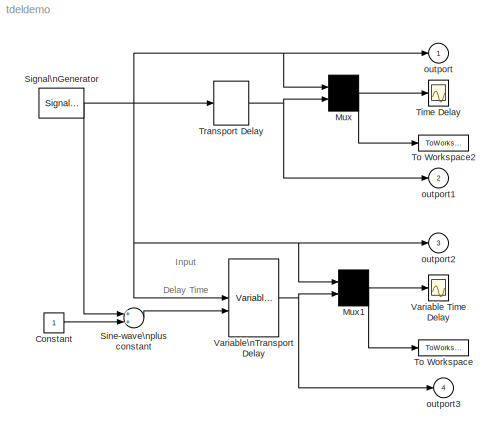
MODEL tdeldemo
KIND model
BLOCK [Constant] Constant
BLOCK [Mux] Mux
  Inputs = 2
  Ports = [2, 1]
BLOCK [Mux] Mux1
  Inputs = 2
  Ports = [2, 1]
BLOCK [SignalGenerator] Signal\nGenerator
  Ports = [0, 1]
BLOCK [Sum] Sine-wave\nplus constant
  Ports = [2, 1]
BLOCK [Scope] Time Delay
  DataFormat = Array
  NumInputPorts = 1
  Ports = [1]
  TickLabels = on
  TimeRange = 2
  YMax = 1
  YMin = -1
BLOCK [ToWorkspace] To Workspace
  MaxDataPoints = 10000
  SampleTime = -1
  SaveFormat = Array
  VariableName = vdout
BLOCK [ToWorkspace] To Workspace2
  MaxDataPoints = 10000
  SampleTime = -1
  SaveFormat = Array
  VariableName = dout
BLOCK [TransportDelay] Transport Delay
  DelayTime = 0.2
BLOCK [Scope] Variable Time Delay
  DataFormat = Array
  NumInputPorts = 1
  Ports = [1]
  TickLabels = on
  TimeRange = 2
  YMax = 1
  YMin = -1
BLOCK [VariableTransportDelay] Variable\nTransport Delay
  MaximumDelay = 3
BLOCK [Outport] outport
  IconDisplay = Port number
  InitialOutput = 0
BLOCK [Outport] outport1
  IconDisplay = Port number
  InitialOutput = 0
  Port = 2
BLOCK [Outport] outport2
  IconDisplay = Port number
  InitialOutput = 0
  Port = 3
BLOCK [Outport] outport3
  IconDisplay = Port number
  InitialOutput = 0
  Port = 4
ANNOTATION (root): Delay Time
ANNOTATION (root): Input
LINE Constant:1 -> Sine-wave\nplus constant:2
NET Mux1:1 -> To Workspace:1, Variable Time Delay:1
NET Mux:1 -> Time Delay:1, To Workspace2:1
NET Signal\nGenerator:1 -> Mux1:1, Mux:1, Sine-wave\nplus constant:1, Transport Delay:1, Variable\nTransport Delay:1, outport2:1, outport:1
LINE Sine-wave\nplus constant:1 -> Variable\nTransport Delay:2
NET Transport Delay:1 -> Mux:2, outport1:1
NET Variable\nTransport Delay:1 -> Mux1:2, outport3:1
note: NET lines group one-source signal fan-out (src -> all destinations, sorted); 1:1 wires keep LINE
